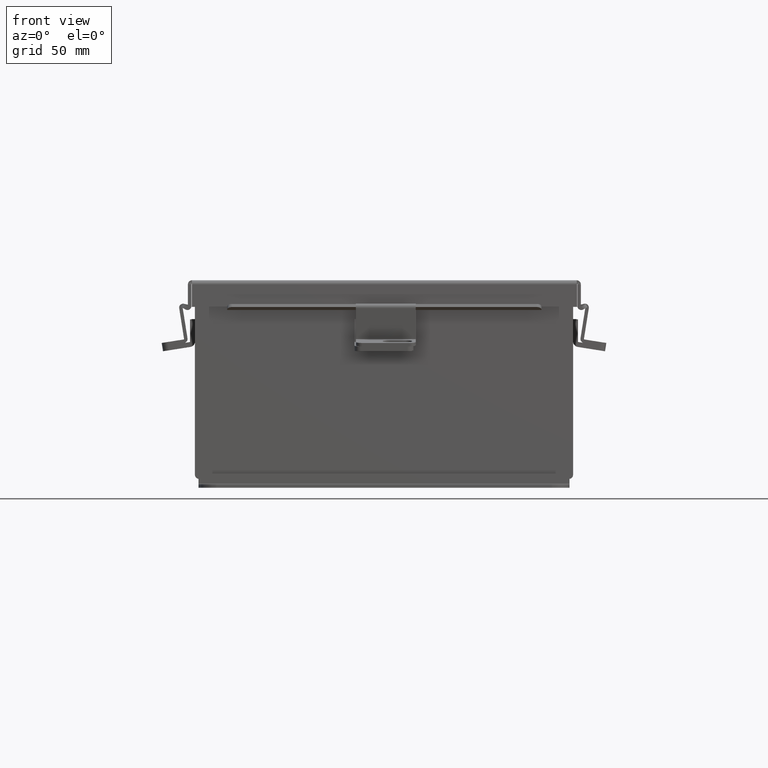
[diagram: clean part render]
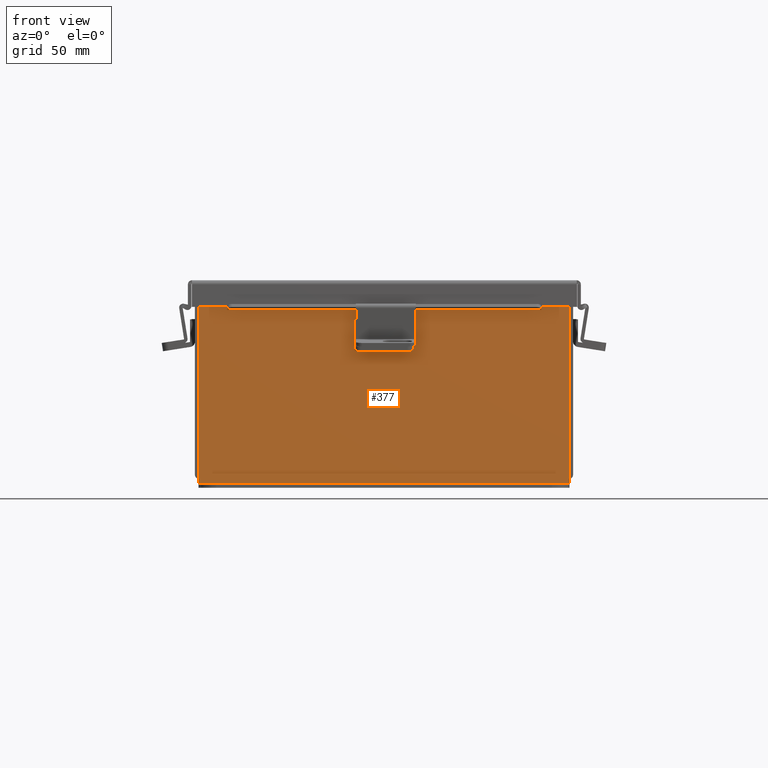
[diagram: same view with one face highlighted and labeled with its STEP entity id]
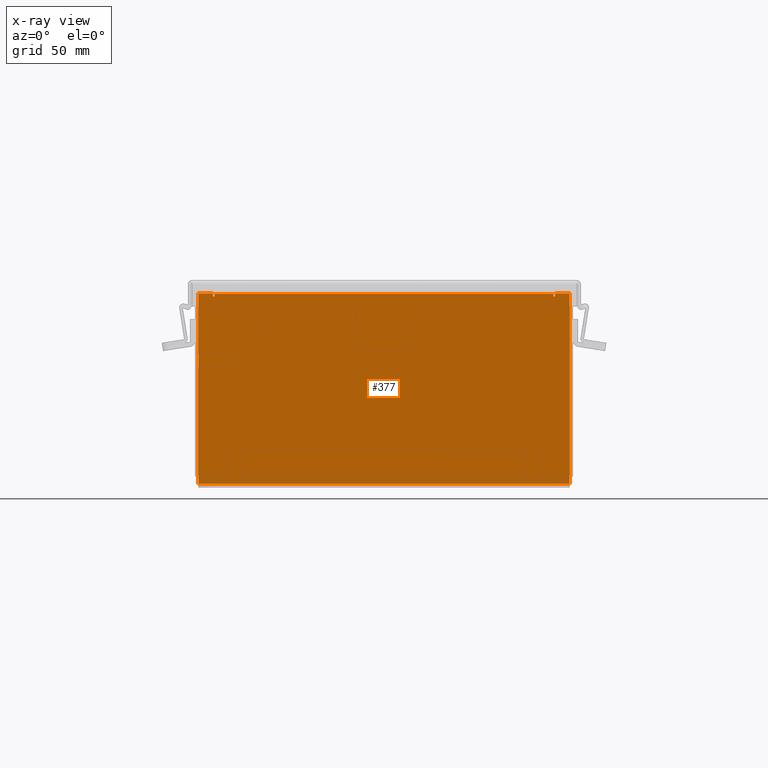
[diagram: x-ray of the same camera — body ghosted, the highlighted face saturated]
A machine part, front view. The second image highlights one B-rep face of the part: STEP entity #377.
The next image is the same camera in x-ray: the body ghosted, the highlighted face saturated — about 0% of this face is hidden behind the body in this view.
In plain terms, the highlighted planar face has unit normal (-0, 1, -0).
Its self-contained STEP definition (entity closure, byte-faithful):
#60 = CARTESIAN_POINT ( 'NONE',  ( -3.925299999999998700, -1.092739197465705300E-015, -2.099300000000005700 ) ) ;
#194 = CARTESIAN_POINT ( 'NONE',  ( -3.582299999999989800, 1.092739197465705300E-015, 1.912299999999999200 ) ) ;
#297 = CARTESIAN_POINT ( 'NONE',  ( -3.619649999999989800, 0.0000000000000000000, 1.925299999999998700 ) ) ;
#323 = VERTEX_POINT ( 'NONE', #297 ) ;
#377 = ADVANCED_FACE ( 'NONE', ( #3852 ), #6303, .F. ) ;
#383 = LINE ( 'NONE', #60, #621 ) ;
#400 = VERTEX_POINT ( 'NONE', #8031 ) ;
#463 = ORIENTED_EDGE ( 'NONE', *, *, #2044, .F. ) ;
#616 = CARTESIAN_POINT ( 'NONE',  ( -3.582299999999998700, 0.0000000000000000000, 1.874949999999999000 ) ) ;
#621 = VECTOR ( 'NONE', #791, 39.37007874015748100 ) ;
#718 = VERTEX_POINT ( 'NONE', #8410 ) ;
#791 = DIRECTION ( 'NONE',  ( 1.000000000000000000, 8.208677865577726500E-017, -0.0000000000000000000 ) ) ;
#803 = VERTEX_POINT ( 'NONE', #616 ) ;
#881 = ORIENTED_EDGE ( 'NONE', *, *, #9312, .T. ) ;
#1607 = LINE ( 'NONE', #4284, #9227 ) ;
#1620 = CARTESIAN_POINT ( 'NONE',  ( -3.582299999999989800, 0.0000000000000000000, 0.0000000000000000000 ) ) ;
#1643 = LINE ( 'NONE', #6430, #1985 ) ;
#1934 = VERTEX_POINT ( 'NONE', #6489 ) ;
#1953 = DIRECTION ( 'NONE',  ( 1.000000000000000000, 9.840417260773006200E-031, 0.0000000000000000000 ) ) ;
#1985 = VECTOR ( 'NONE', #6820, 39.37007874015748100 ) ;
#2044 = EDGE_CURVE ( 'NONE', #718, #400, #6029, .T. ) ;
#2087 = EDGE_CURVE ( 'NONE', #1934, #323, #7586, .T. ) ;
#2279 = EDGE_CURVE ( 'NONE', #3102, #323, #9242, .T. ) ;
#2363 = ORIENTED_EDGE ( 'NONE', *, *, #2087, .T. ) ;
#2409 = DIRECTION ( 'NONE',  ( 9.840417260773006200E-031, 1.000000000000000000, -0.0000000000000000000 ) ) ;
#2434 = CIRCLE ( 'NONE', #4817, 0.01867500000000003900 ) ;
#2481 = CARTESIAN_POINT ( 'NONE',  ( 3.925300000000000900, 1.639108796198557900E-014, -2.099300000000001300 ) ) ;
#2522 = CARTESIAN_POINT ( 'NONE',  ( 3.925300000000009800, 0.0000000000000000000, 1.925299999999998700 ) ) ;
#2622 = DIRECTION ( 'NONE',  ( 0.0000000000000000000, 0.0000000000000000000, 1.000000000000000000 ) ) ;
#2628 = EDGE_CURVE ( 'NONE', #5093, #1934, #1643, .T. ) ;
#2756 = DIRECTION ( 'NONE',  ( 1.000000000000000000, 9.840417260773006200E-031, 0.0000000000000000000 ) ) ;
#3041 = VERTEX_POINT ( 'NONE', #2522 ) ;
#3056 = DIRECTION ( 'NONE',  ( 9.840417260773006200E-031, 1.000000000000000000, -0.0000000000000000000 ) ) ;
#3102 = VERTEX_POINT ( 'NONE', #5455 ) ;
#3126 = ORIENTED_EDGE ( 'NONE', *, *, #4452, .F. ) ;
#3220 = AXIS2_PLACEMENT_3D ( 'NONE', #6813, #2409, #7589 ) ;
#3237 = EDGE_CURVE ( 'NONE', #6806, #803, #6539, .T. ) ;
#3605 = ORIENTED_EDGE ( 'NONE', *, *, #2279, .F. ) ;
#3641 = VERTEX_POINT ( 'NONE', #2481 ) ;
#3852 = FACE_OUTER_BOUND ( 'NONE', #4327, .T. ) ;
#4120 = CARTESIAN_POINT ( 'NONE',  ( -3.925299999999998700, -1.092739197465705300E-015, -2.099300000000005700 ) ) ;
#4126 = LINE ( 'NONE', #7108, #6087 ) ;
#4228 = DIRECTION ( 'NONE',  ( -2.170286390199978800E-014, -1.577721810442023600E-030, -1.000000000000000000 ) ) ;
#4274 = EDGE_CURVE ( 'NONE', #5093, #3641, #383, .T. ) ;
#4284 = CARTESIAN_POINT ( 'NONE',  ( 3.925300000000009800, 0.0000000000000000000, 1.925299999999998700 ) ) ;
#4327 = EDGE_LOOP ( 'NONE', ( #3605, #9088, #7547, #5623, #463, #8245, #3126, #881, #5951, #4582, #8474, #2363 ) ) ;
#4452 = EDGE_CURVE ( 'NONE', #5008, #7049, #7195, .T. ) ;
#4582 = ORIENTED_EDGE ( 'NONE', *, *, #4274, .F. ) ;
#4668 = VECTOR ( 'NONE', #2756, 39.37007874015748100 ) ;
#4769 = CARTESIAN_POINT ( 'NONE',  ( 3.582300000000009400, 0.0000000000000000000, 0.0000000000000000000 ) ) ;
#4817 = AXIS2_PLACEMENT_3D ( 'NONE', #7515, #3056, #8240 ) ;
#4831 = VECTOR ( 'NONE', #5129, 39.37007874015748100 ) ;
#5008 = VERTEX_POINT ( 'NONE', #5540 ) ;
#5025 = DIRECTION ( 'NONE',  ( 0.0000000000000000000, 0.0000000000000000000, -1.000000000000000000 ) ) ;
#5093 = VERTEX_POINT ( 'NONE', #4120 ) ;
#5129 = DIRECTION ( 'NONE',  ( 1.000000000000000000, 9.840417260773006200E-031, -0.0000000000000000000 ) ) ;
#5138 = DIRECTION ( 'NONE',  ( 0.0000000000000000000, 0.0000000000000000000, -1.000000000000000000 ) ) ;
#5273 = DIRECTION ( 'NONE',  ( 0.0000000000000000000, 0.0000000000000000000, -1.000000000000000000 ) ) ;
#5429 = AXIS2_PLACEMENT_3D ( 'NONE', #5680, #7944, #5273 ) ;
#5455 = CARTESIAN_POINT ( 'NONE',  ( -3.619649999999998700, 0.0000000000000000000, 1.874949999999997900 ) ) ;
#5504 = VECTOR ( 'NONE', #5138, 39.37007874015748100 ) ;
#5540 = CARTESIAN_POINT ( 'NONE',  ( 3.619650000000010700, 0.0000000000000000000, 1.925299999999998700 ) ) ;
#5623 = ORIENTED_EDGE ( 'NONE', *, *, #7389, .T. ) ;
#5680 = CARTESIAN_POINT ( 'NONE',  ( 0.0000000000000000000, 0.0000000000000000000, 0.0000000000000000000 ) ) ;
#5951 = ORIENTED_EDGE ( 'NONE', *, *, #7779, .T. ) ;
#6029 = LINE ( 'NONE', #4769, #8818 ) ;
#6087 = VECTOR ( 'NONE', #1953, 39.37007874015748100 ) ;
#6303 = PLANE ( 'NONE',  #5429 ) ;
#6305 = DIRECTION ( 'NONE',  ( 0.0000000000000000000, 0.0000000000000000000, 1.000000000000000000 ) ) ;
#6430 = CARTESIAN_POINT ( 'NONE',  ( -3.925299999999989800, 0.0000000000000000000, 1.925299999999998700 ) ) ;
#6489 = CARTESIAN_POINT ( 'NONE',  ( -3.925299999999989800, 0.0000000000000000000, 1.925299999999998700 ) ) ;
#6539 = LINE ( 'NONE', #1620, #5504 ) ;
#6623 = CARTESIAN_POINT ( 'NONE',  ( -3.582299999999989800, 1.092739197465705300E-015, 1.912299999999999200 ) ) ;
#6675 = CIRCLE ( 'NONE', #3220, 0.01867500000000003900 ) ;
#6784 = CARTESIAN_POINT ( 'NONE',  ( 3.619649999999968900, 0.0000000000000000000, -7.867722221753078700E-014 ) ) ;
#6806 = VERTEX_POINT ( 'NONE', #194 ) ;
#6813 = CARTESIAN_POINT ( 'NONE',  ( 3.600975000000000900, 0.0000000000000000000, 1.874949999999996800 ) ) ;
#6820 = DIRECTION ( 'NONE',  ( 0.0000000000000000000, 0.0000000000000000000, 1.000000000000000000 ) ) ;
#6961 = VECTOR ( 'NONE', #4228, 39.37007874015748100 ) ;
#7049 = VERTEX_POINT ( 'NONE', #7767 ) ;
#7108 = CARTESIAN_POINT ( 'NONE',  ( -3.925299999999989800, 0.0000000000000000000, 1.925299999999998700 ) ) ;
#7195 = LINE ( 'NONE', #6784, #6961 ) ;
#7389 = EDGE_CURVE ( 'NONE', #6806, #400, #8537, .T. ) ;
#7467 = EDGE_CURVE ( 'NONE', #803, #3102, #2434, .T. ) ;
#7515 = CARTESIAN_POINT ( 'NONE',  ( -3.600974999999998700, 0.0000000000000000000, 1.874949999999999000 ) ) ;
#7547 = ORIENTED_EDGE ( 'NONE', *, *, #3237, .F. ) ;
#7586 = LINE ( 'NONE', #7721, #4668 ) ;
#7589 = DIRECTION ( 'NONE',  ( 0.0000000000000000000, 0.0000000000000000000, -1.000000000000000000 ) ) ;
#7721 = CARTESIAN_POINT ( 'NONE',  ( -3.925299999999989800, 0.0000000000000000000, 1.925299999999998700 ) ) ;
#7767 = CARTESIAN_POINT ( 'NONE',  ( 3.619650000000000900, 0.0000000000000000000, 1.874949999999997900 ) ) ;
#7779 = EDGE_CURVE ( 'NONE', #3041, #3641, #1607, .T. ) ;
#7799 = VECTOR ( 'NONE', #6305, 39.37007874015748100 ) ;
#7944 = DIRECTION ( 'NONE',  ( -9.840417260773006200E-031, -1.000000000000000000, -0.0000000000000000000 ) ) ;
#8031 = CARTESIAN_POINT ( 'NONE',  ( 3.582300000000009400, 0.0000000000000000000, 1.912299999999997000 ) ) ;
#8240 = DIRECTION ( 'NONE',  ( 0.0000000000000000000, 0.0000000000000000000, -1.000000000000000000 ) ) ;
#8245 = ORIENTED_EDGE ( 'NONE', *, *, #9004, .F. ) ;
#8410 = CARTESIAN_POINT ( 'NONE',  ( 3.582300000000000900, 0.0000000000000000000, 1.874949999999996800 ) ) ;
#8474 = ORIENTED_EDGE ( 'NONE', *, *, #2628, .T. ) ;
#8537 = LINE ( 'NONE', #6623, #4831 ) ;
#8631 = CARTESIAN_POINT ( 'NONE',  ( -3.619649999999989800, 0.0000000000000000000, 0.0000000000000000000 ) ) ;
#8818 = VECTOR ( 'NONE', #2622, 39.37007874015748100 ) ;
#9004 = EDGE_CURVE ( 'NONE', #7049, #718, #6675, .T. ) ;
#9088 = ORIENTED_EDGE ( 'NONE', *, *, #7467, .F. ) ;
#9227 = VECTOR ( 'NONE', #5025, 39.37007874015748100 ) ;
#9242 = LINE ( 'NONE', #8631, #7799 ) ;
#9312 = EDGE_CURVE ( 'NONE', #5008, #3041, #4126, .T. ) ;